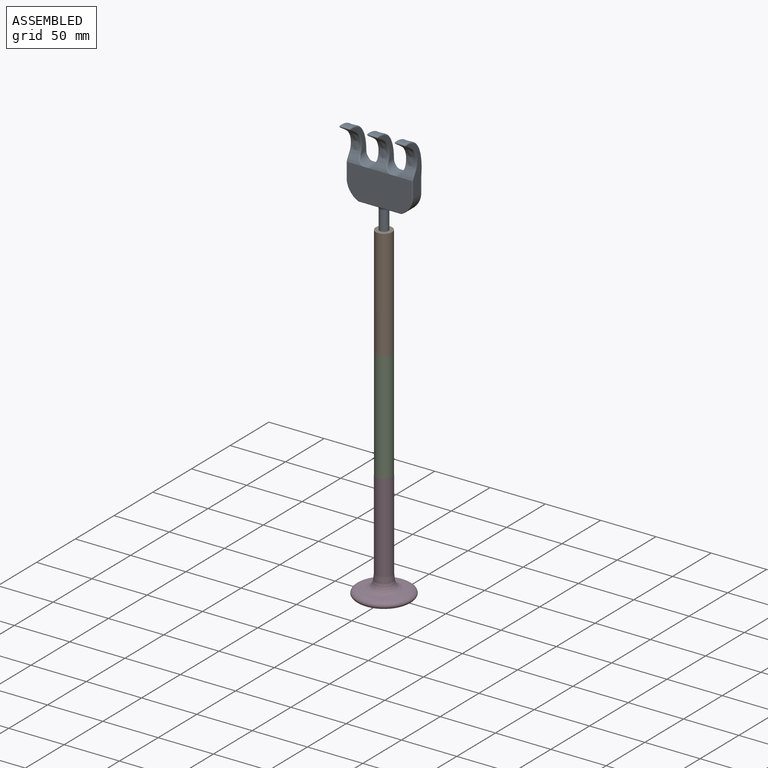
[diagram: assembled view]
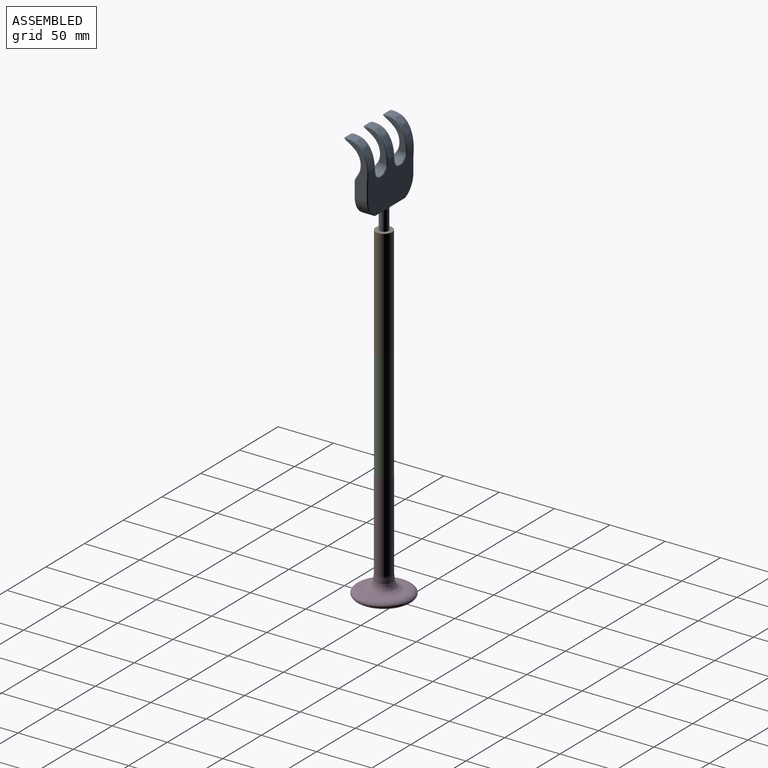
[diagram: assembled view, second angle]
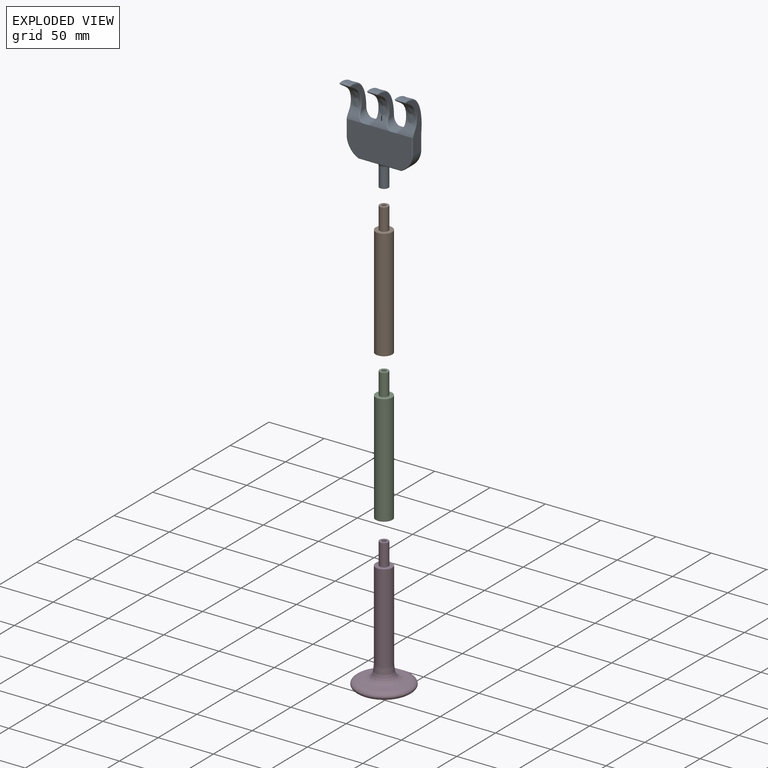
[diagram: exploded view]
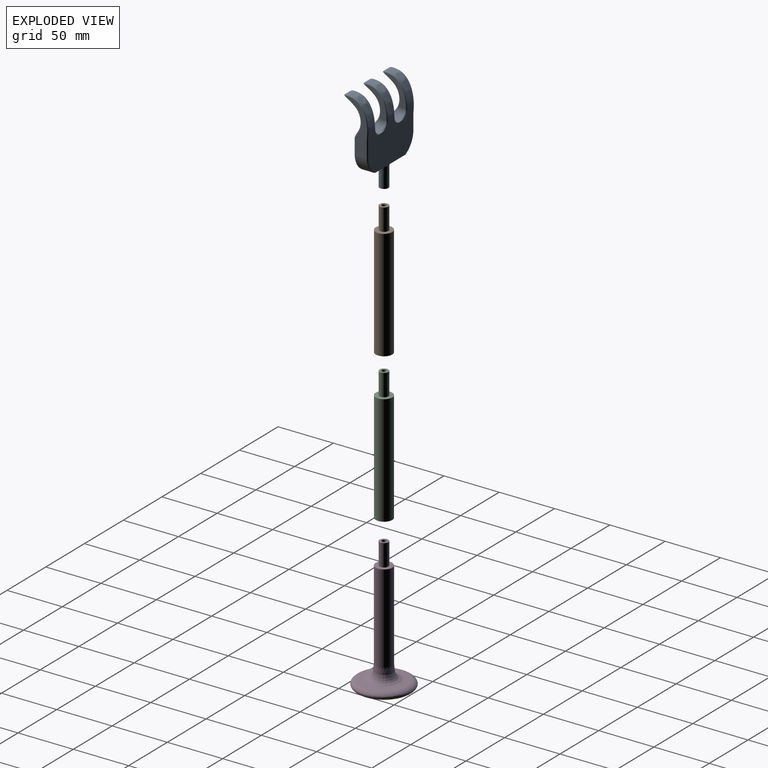
[diagram: exploded view, second angle]
ASSEMBLY  parts=4 mates=3
PART A: 66 faces, bbox 63.6x83.7x22.4 mm
  f0: plane 19.35x10mm, normal (0,1,0), area 154.2mm2, adj f7,f10,f56,f59
  f1: extruded ~33.04x21.7mm, area 715.3mm2, adj f8,f9,f23,f25,f26,f27,f28,f62
  f2: extruded ~33.04x21.7mm, area 736.7mm2, adj f8,f9,f30,f31,f32,f33,f34,f44
  f3: plane 19.35x10mm, normal (0,1,0), area 154.2mm2, adj f4,f10,f56,f59
  f4: cylinder r=18.41mm len=15mm, axis (0,0,-1), area 192.6mm2, adj f3,f5,f58,f61
  f5: plane 47.07x19.36mm, normal (-1,0,0), area 336.7mm2, adj f4,f60,f62,f63,f65
  f6: plane 47.07x19.36mm, normal (1,0,0), area 336.7mm2, adj f7,f50,f52,f53,f55
  f7: cylinder r=18.41mm len=15mm, axis (0,0,-1), area 192.6mm2, adj f0,f6,f54,f57
  f8: plane 58.6x29.6mm, normal (0,0,1), area 1595.8mm2, adj f1,f2,f15,f22,f35,f42,f43,f52
  f9: plane 58.54x29.54mm, normal (0,0,-1), area 1595.8mm2, adj f1,f2,f15,f24,f29,f36,f45,f55
  f10: cone r=5mm half-angle=26.6deg, axis (0,-1,0), area 63.2mm2, adj f0,f3,f11
  f11: cylinder r=4mm len=18mm, axis (0,1,0), area 452.4mm2, adj f10,f12
  f12: plane 8x8mm, normal (0,1,0), area 37.7mm2, adj f11,f13
  f13: cylinder r=2mm len=20mm, axis (0,1,0), area 251.3mm2, adj f12,f14
  f14: plane 4x4mm, normal (0,1,0), area 12.6mm2, adj f13
  f15: extruded ~33.04x21.7mm, area 715.3mm2, adj f8,f9,f37,f38,f39,f40,f41,f50
  f16: plane 24.58x19.35mm, normal (1,0,0), area 124.7mm2, adj f20,f46,f49
  f17: plane 24.58x19.35mm, normal (-1,0,0), area 124.7mm2, adj f20,f38,f40
  f18: plane 24.58x19.35mm, normal (1,0,0), area 124.7mm2, adj f21,f25,f28
  f19: plane 24.58x19.35mm, normal (-1,0,0), area 124.7mm2, adj f21,f31,f33
  f20: cylinder r=7.5mm len=15mm, axis (0,0,1), area 210.7mm2, adj f16,f17,f36,f37,f41,f42,f43,f44
  f21: cylinder r=7.5mm len=15mm, axis (0,0,-1), area 210.7mm2, adj f18,f19,f22,f23,f24,f26,f29,f30
  f22: bspline ~4.46x1.26mm, area 2.1mm2, adj f8,f21,f23
  f23: bspline ~9x6.37mm, area 13.4mm2, adj f1,f21,f22,f25
  f24: bspline ~3.64x0.99mm, area 1.3mm2, adj f9,f21,f26
  f25: bspline ~28.42x21.38mm, area 58.3mm2, adj f1,f18,f23,f27
  f26: bspline ~9.46x5.73mm, area 13.7mm2, adj f1,f21,f24,f28
  f27: bspline ~1.48x1.15mm, area 1.5mm2, adj f1,f25,f28
  f28: bspline ~25.8x15.59mm, area 47.7mm2, adj f1,f18,f26,f27
  f29: bspline ~3.64x0.99mm, area 1.3mm2, adj f9,f21,f30
  f30: bspline ~8.51x5.93mm, area 13.7mm2, adj f2,f21,f29,f31
  f31: bspline ~26x15.51mm, area 47.7mm2, adj f2,f19,f30,f32
  f32: bspline ~1.48x1.15mm, area 1.2mm2, adj f2,f31,f33
  f33: bspline ~29.61x21.49mm, area 58.3mm2, adj f2,f19,f32,f34
  f34: bspline ~9.55x5.02mm, area 13.4mm2, adj f2,f21,f33,f35
  f35: bspline ~4.46x1.26mm, area 2.1mm2, adj f8,f21,f34
  f36: bspline ~3.64x0.99mm, area 1.3mm2, adj f9,f20,f37
  f37: bspline ~8.51x5.93mm, area 13.7mm2, adj f15,f20,f36,f38
  f38: bspline ~26x15.51mm, area 47.7mm2, adj f15,f17,f37,f39
  f39: bspline ~1.48x1.15mm, area 1.5mm2, adj f15,f38,f40
  f40: bspline ~29.61x21.49mm, area 58.3mm2, adj f15,f17,f39,f41
  f41: bspline ~9.55x5.02mm, area 13.4mm2, adj f15,f20,f40,f42
  f42: bspline ~4.46x1.26mm, area 2.1mm2, adj f8,f20,f41
  f43: bspline ~4.46x1.26mm, area 2.1mm2, adj f8,f20,f44
  f44: bspline ~9x6.37mm, area 13.4mm2, adj f2,f20,f43,f46
  f45: bspline ~3.64x0.99mm, area 1.3mm2, adj f9,f20,f47
  f46: bspline ~28.42x21.38mm, area 58.3mm2, adj f2,f16,f44,f48
  f47: bspline ~9.46x5.73mm, area 13.7mm2, adj f2,f20,f45,f49
  f48: bspline ~1.48x1.15mm, area 1.5mm2, adj f2,f46,f49
  f49: bspline ~25.8x15.59mm, area 47.7mm2, adj f2,f16,f47,f48
  f50: bspline ~33.93x21.32mm, area 70.1mm2, adj f6,f15,f51,f52
  f51: bspline ~1.48x1.15mm, area 1.2mm2, adj f15,f50,f53
  f52: cylinder r=1mm len=15.06mm, axis (0,-1,0), area 23.6mm2, adj f6,f8,f50,f54
  f53: bspline ~38.59x15.54mm, area 61.6mm2, adj f6,f15,f51,f55
  f54: torus R=17.41mm, axis (0,0,1), area 29.5mm2, adj f7,f8,f52,f56
  f55: cylinder r=1mm len=15mm, axis (0,1,0), area 23.4mm2, adj f6,f9,f53,f57
  f56: cylinder r=1mm len=38.7mm, axis (1,0,0), area 60.4mm2, adj f0,f3,f8,f54,f58
  f57: torus R=17.41mm, axis (0,0,1), area 29.5mm2, adj f7,f9,f55,f59
  f58: torus R=17.41mm, axis (0,0,1), area 29.5mm2, adj f4,f8,f56,f60
  f59: cylinder r=1mm len=38.7mm, axis (-1,0,0), area 60.4mm2, adj f0,f3,f9,f57,f61
  f60: cylinder r=1mm len=15.06mm, axis (0,1,0), area 23.6mm2, adj f5,f8,f58,f62
  f61: torus R=17.41mm, axis (0,0,1), area 29.5mm2, adj f4,f9,f59,f63
  f62: bspline ~33.93x21.49mm, area 70.1mm2, adj f1,f5,f60,f64
  f63: cylinder r=1mm len=15mm, axis (0,-1,0), area 23.4mm2, adj f5,f9,f61,f65
  f64: bspline ~1.48x1.15mm, area 1.3mm2, adj f1,f62,f65
  f65: bspline ~38.59x15.54mm, area 61.6mm2, adj f1,f5,f63,f64
PART B: 8 faces, bbox 14.9x14.9x120 mm
  f0: plane 14.9x14.9mm, normal (0,0,1), area 125.3mm2, adj f1,f7
  f1: cylinder r=3.95mm len=19.9mm, axis (0,0,1), area 493.9mm2, adj f0,f2
  f2: plane 7.9x7.9mm, normal (0,0,1), area 36.5mm2, adj f1,f3
  f3: cylinder r=2mm len=100mm, axis (0,0,1), area 1256.6mm2, adj f2,f4
  f4: plane 8x8mm, normal (0,0,-1), area 37.7mm2, adj f3,f5
  f5: cylinder r=4mm len=20mm, axis (0,0,1), area 502.7mm2, adj f4,f6
  f6: plane 14.9x14.9mm, normal (0,0,-1), area 124.1mm2, adj f5,f7
  f7: cylinder r=7.45mm len=100.1mm, axis (0,0,1), area 4685.7mm2, adj f0,f6
PART C: same geometry as B
PART D: 8 faces, bbox 50x50x120 mm
  f0: plane 15x15mm, normal (0,0,1), area 127.7mm2, adj f1,f7
  f1: cylinder r=3.95mm len=19.9mm, axis (0,0,-1), area 493.9mm2, adj f0,f2
  f2: plane 7.9x7.9mm, normal (0,0,1), area 36.5mm2, adj f1,f3
  f3: cylinder r=2mm len=109.75mm, axis (0,0,-1), area 1379.1mm2, adj f2,f4
  f4: revolved ~20.25x20.25mm, area 442.9mm2, adj f3,f5
  f5: plane 41.07x41.07mm, normal (0,0,-1), area 1002.5mm2, adj f4,f6
  f6: revolved ~49.97x49.97mm, area 3368.8mm2, adj f5,f7
  f7: cylinder r=7.5mm len=80.1mm, axis (0,0,-1), area 3774.8mm2, adj f0,f6
PLACE A rot(axis=(-1,0,0),90deg) t=(3.74,-6.47,38.42)mm fixed
PLACE B t=(3.69,-6.47,-40.2)mm
PLACE C t=(3.69,-6.47,-140.2)mm
PLACE D t=(3.74,-6.47,-240.86)mm
MATE fastened C.f1 <-> D.f1  axis (0,0,-1) through (3.74,-6.47,-176.58)mm
MATE fastened A.f10 <-> B.f1  axis (0,0,-1) through (3.74,-6.47,3.42)mm
MATE fastened B.f1 <-> C.f1  axis (0,0,-1) through (3.74,-6.47,-76.58)mm
